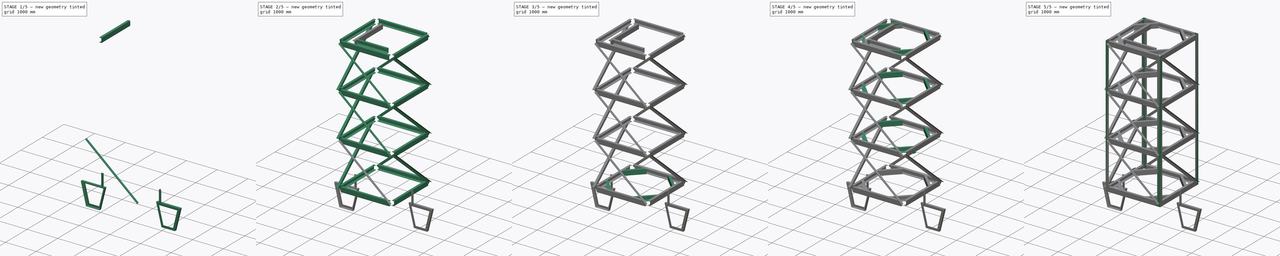
[diagram: build sequence overview — one tinted view per stage of 5, left to right]
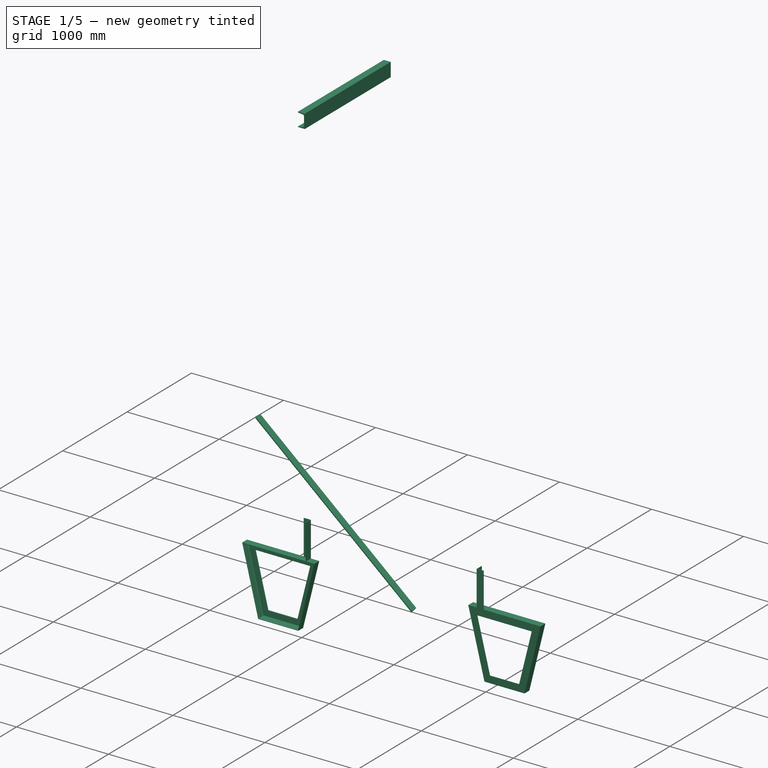
[diagram: stage 1 of 5 — iso view after this stage's code; geometry added in this stage tinted green]
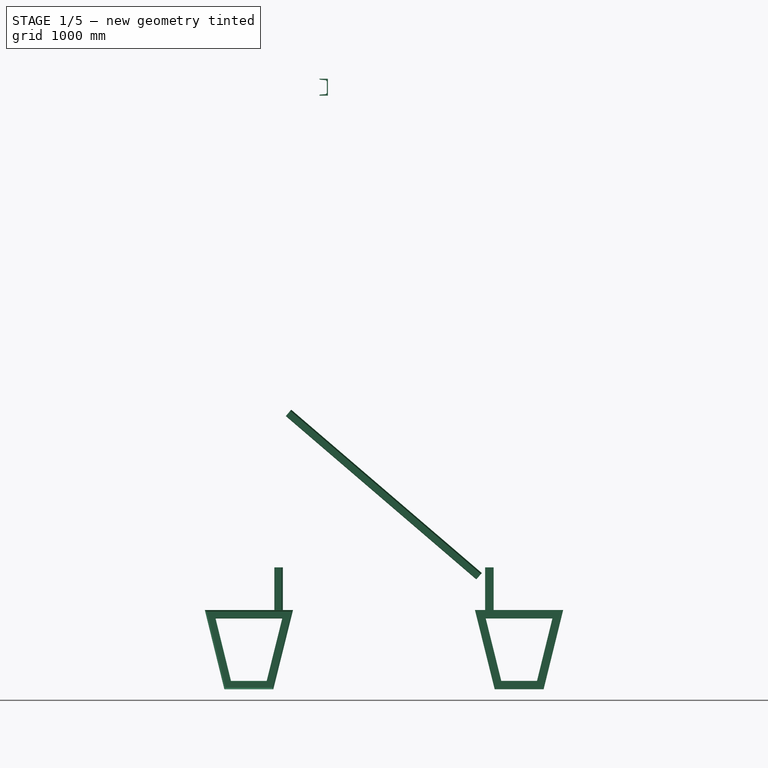
[diagram: stage 1 of 5 — front view after this stage's code; geometry added in this stage tinted green]
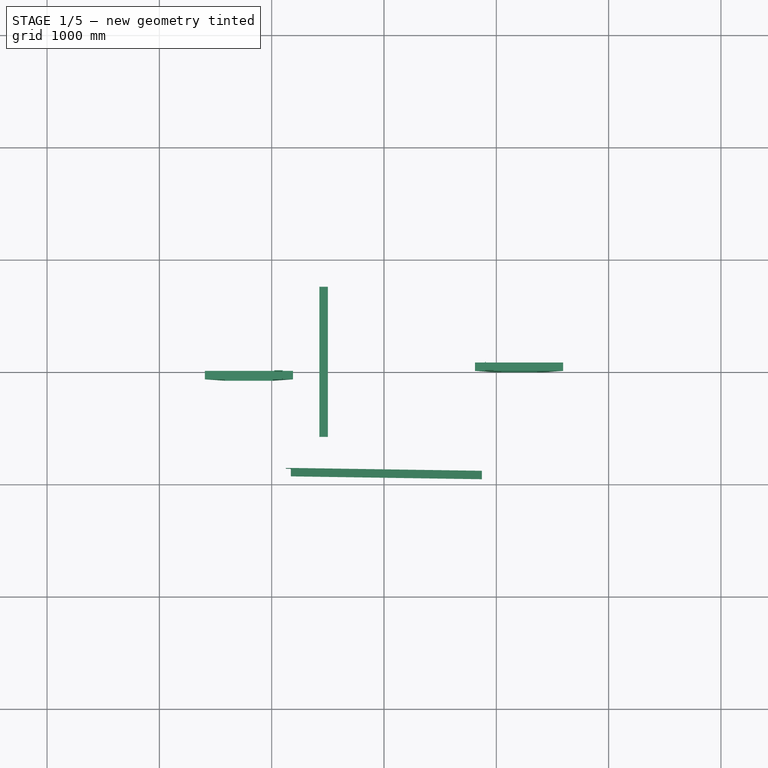
[diagram: stage 1 of 5 — top view after this stage's code; geometry added in this stage tinted green]
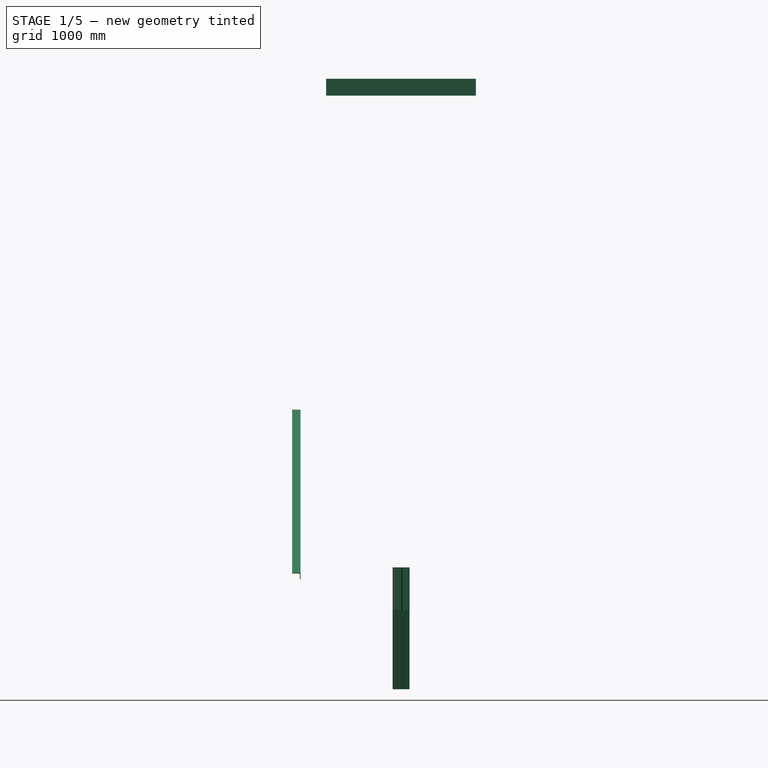
[diagram: stage 1 of 5 — right view after this stage's code; geometry added in this stage tinted green]
FCSTD DOCUMENT  (FreeCAD 1.0R39109 (Git))
Label: centerCage
License: All rights reserved
LicenseURL: https://en.wikipedia.org/wiki/All_rights_reserved
objects: Part::FeaturePython×15, Part::Mirroring×6, Part::Compound×6, Sketcher::SketchObject×5, Part::Extrusion×4, Part::Cut×3, Part::Feature×3, App::Part×2, Spreadsheet::Sheet×1, PartDesign::Pad×1, Part::Sweep×1
note: 45 computed .brp shape members not serialized (recipe doc carries the construction recipe); baked Part::Feature solids carry a one-line shape summary decoded from their .brp

FEATURE [Part::FeaturePython] AngleSteel002  label="LShp001"  # WARN: FeaturePython — macro-defined, semantics opaque (R4)
  A = 75
  B = 75
  L = 2234.39
  Placement = pos=(-850,-932.5,1525) rot=(0,1,0;2.2794rad)
  Solid = true
  g0 = 7.85
  mass = 15.306
  size = 10
  standard = SS_Equal
  t = 6
  expr: .Placement.Base.x = -Spreadsheet.W0 / 2 + Spreadsheet.mb0 / 2
  expr: .Placement.Base.y = -Spreadsheet.W0 / 2 - 32.5
  expr: .Placement.Base.z = Spreadsheet.p0 + Spreadsheet.hg
  expr: .Placement.Rotation.Angle = Spreadsheet.sita + 90
  expr: L = Spreadsheet.ll
FEATURE [Part::FeaturePython] ChannelSteel002  # WARN: FeaturePython — macro-defined, semantics opaque (R4)
  B = 75
  H = 150
  L = 1200
  Placement = pos=(500,0,4350) rot=(0,0,1;0rad)
  Solid = false
  g0 = 7.85
  mass = 0
  size = 4
  standard = SS
  t1 = 9
  t2 = 12.5
  expr: .Placement.Base.z = Spreadsheet.L0 - 150
FEATURE [Part::Extrusion] Extrude008
  Base = -> ChannelSteel002
  Dir = (0,1,0)
  DirMode = 2
  FaceMakerClass = Part::FaceMakerBullseye
  FaceMakerMode = 3
  LengthFwd = 1334
  LengthRev = 0
  Solid = false
  Symmetric = true
FEATURE [Part::Compound] Compound008
FEATURE [Part::Cut] Cut002
  Base = -> Extrude008
  Tool = -> Compound008
FEATURE [Sketcher::SketchObject] Sketch
  ArcFitTolerance = 1e-06
  AttachmentSupport = -> [Part__Feature009]
  FullyConstrained = false
  MakeInternals = false
  MapMode = 5
  Placement = pos=(0,0.033,0) rot=(1,0,0;1.5708rad)
  sketch-geometry (4):
    g0: LineSegment StartX=830.796 StartY=-231.462 StartZ=0 EndX=1616.25 EndY=-231.462 EndZ=0
    g1: LineSegment StartX=1616.25 StartY=-231.462 StartZ=0 EndX=1442.06 EndY=-936.829 EndZ=0
    g2: LineSegment StartX=1442.06 StartY=-936.829 StartZ=0 EndX=1006.47 EndY=-936.829 EndZ=0
    g3: LineSegment StartX=1006.47 StartY=-936.829 StartZ=0 EndX=830.796 EndY=-231.462 EndZ=0
  constraints (6):
    c: Horizontal(g0)
    c: Coincident(g0,g1)
    c: Coincident(g1,g2)
    c: Horizontal(g2)
    c: Coincident(g2,g3)
    c: Coincident(g3,g0)
FEATURE [Part::FeaturePython] AngleSteel003  # WARN: FeaturePython — macro-defined, semantics opaque (R4)
  A = 75
  B = 75
  L = 5500
  Placement = pos=(1262.5,0,-231.5) rot=(0.57735,-0.57735,-0.57735;4.18879rad)
  Solid = false
  g0 = 7.85
  mass = 0
  size = 10
  standard = SS_Equal
  t = 6
  type = 00_Angle
FEATURE [Part::Sweep] Sweep
  Frenet = true
  Placement = pos=(-44,0,1178.5) rot=(0,0,1;0rad)
  Sections = -> [AngleSteel003]
  Solid = true
  Spine = -> Sketch [Edge1,Edge2,Edge3,Edge4]
  Transition = 1
FEATURE [App::Part] Compound017  label="brade"
  Group = -> [Part__Feature008,Part__Feature009,AngleSteel003,Sketch,Sweep]
  Origin = -> Origin005
  Placement = pos=(23,0,-1177.59) rot=(0,0,1;0rad)
FEATURE [Part::FeaturePython] Array014  # Draft array (typed FeaturePython)
  AlwaysSyncPlacement = false
  Angle = 360
  ArrayType = 1
  Axis = (0,0,1)
  Base = -> Compound017
  Center = (0,0,0)
  Count = 2
  ExpandArray = false
  Fuse = true
  IntervalAxis = (0,0,0)
  IntervalX = (50,0,0)
  IntervalY = (0,50,0)
  IntervalZ = (0,0,50)
  NumberCircles = 3
  NumberPolar = 2
  NumberX = 2
  NumberY = 2
  NumberZ = 1
  PlacementList = 2 placements: [(23,0,-1177.59),(-23,2.81669e-15,-1177.59)]
  RadialDistance = 50
  ScaleList = (2) [(1,1,1),(1,1,1)]
  Symmetry = 1
  TangentialDistance = 25
FEATURE [Part::Mirroring] Mirror011  label="Cut002 (mirrored)"
  Base = (0,0,0)
  Normal = (1,0,0)
  Source = -> Cut002
FEATURE [App::Part] Part  label="centerCage"
  Group = -> [Spreadsheet,ChannelSteel,Array001,AngleSteel,Array,AngleSteel001,ChannelSteel001,Compound003,Sketch006,Mirror005,Extrude006,Cut,Sketch007,Pad,Sketch008,Extrude007,Cut001,Mirror006,Compound004,AngleSteel002,Array008,Sketch009,Extrude,Mirror,Compound005,Compound006,Mirror007,Compound008,Extrude008,ChannelSteel002,Cut002,ChannelSteel003,Array010,Array011,Mirror010,Compound017,Part__Feature005,+4 more]
  Origin = -> Origin
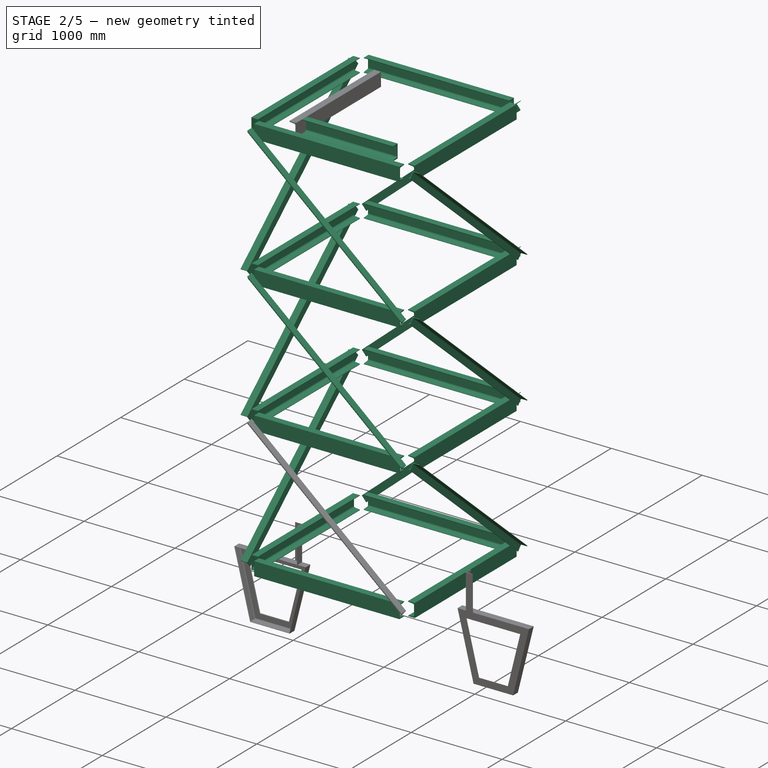
[diagram: stage 2 of 5 — iso view after this stage's code; geometry added in this stage tinted green]
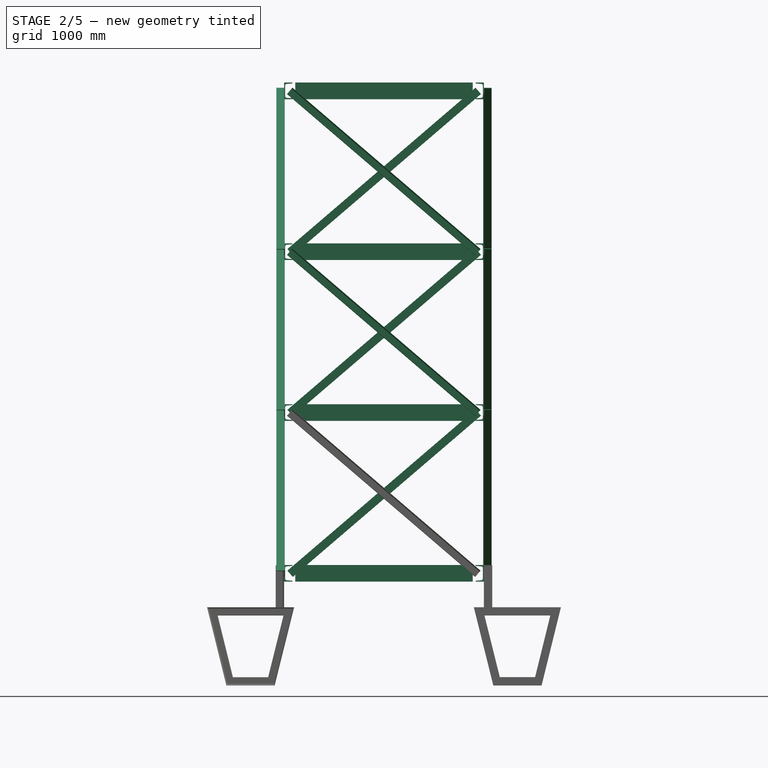
[diagram: stage 2 of 5 — front view after this stage's code; geometry added in this stage tinted green]
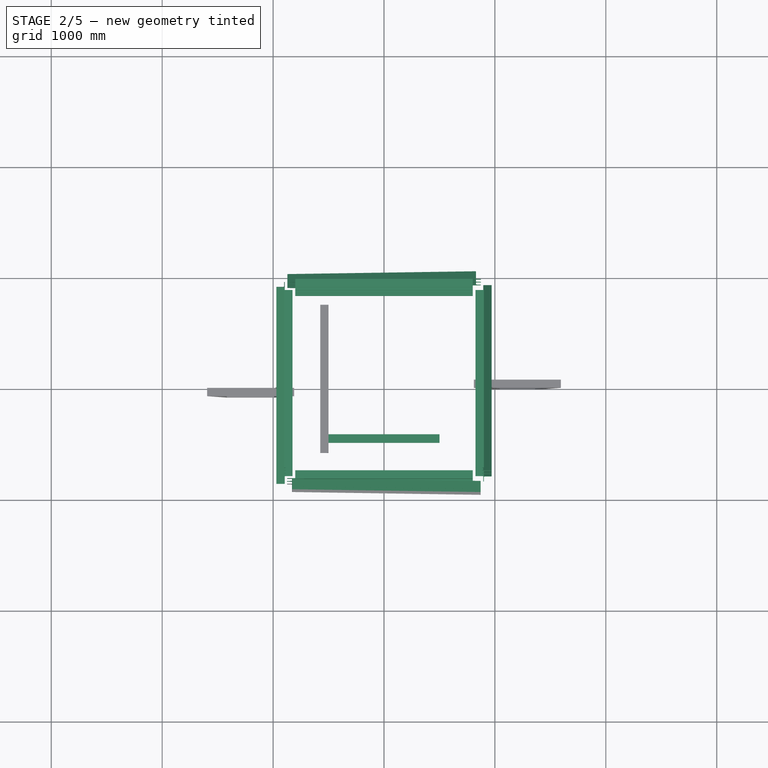
[diagram: stage 2 of 5 — top view after this stage's code; geometry added in this stage tinted green]
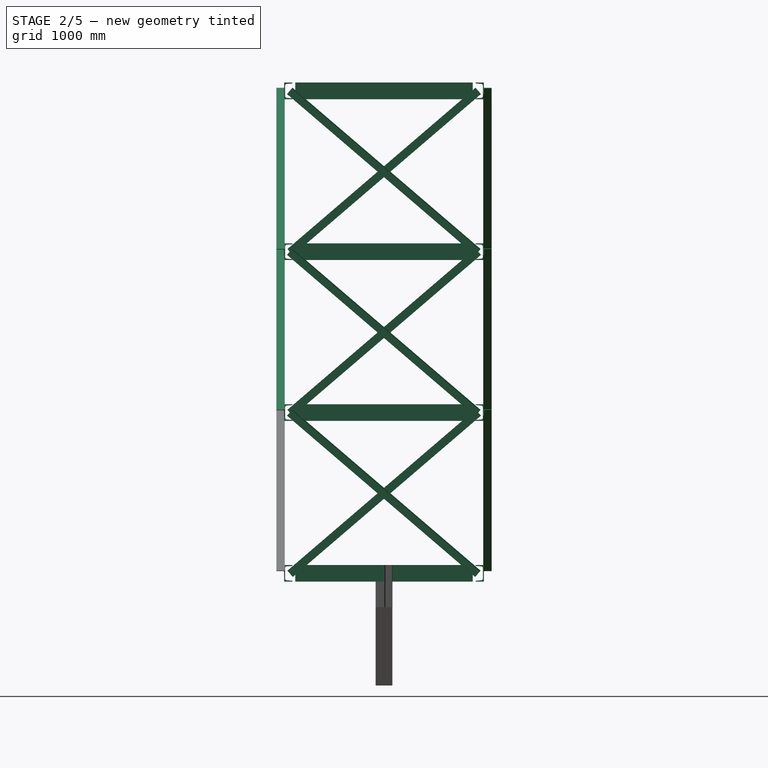
[diagram: stage 2 of 5 — right view after this stage's code; geometry added in this stage tinted green]
FEATURE [Part::FeaturePython] ChannelSteel  label="hShp"  # WARN: FeaturePython — macro-defined, semantics opaque (R4)
  B = 75
  H = 150
  L = 1600
  Placement = pos=(-800,-862.5,75) rot=(0.57735,0.57735,0.57735;2.0944rad)
  Solid = true
  g0 = 7.85
  mass = 35.6065
  size = 4
  standard = SS
  t1 = 6
  t2 = 8
  expr: .Placement.Base.x = -Spreadsheet.W0 / 2 + Spreadsheet.mb0
  expr: .Placement.Base.y = -Spreadsheet.W0 / 2 + Spreadsheet.hb0 / 2
  expr: .Placement.Base.z = Spreadsheet.hg
  expr: L = Spreadsheet.W0 - Spreadsheet.mb0 * 2
FEATURE [Part::FeaturePython] Array001  label="hBeam"  # Draft array (typed FeaturePython)
  AlwaysSyncPlacement = false
  Angle = 360
  ArrayType = 0
  Axis = (0,0,1)
  Base = -> ChannelSteel
  Center = (0,0,0)
  Count = 4
  ExpandArray = false
  Fuse = false
  IntervalAxis = (0,0,0)
  IntervalX = (100,0,0)
  IntervalY = (0,100,0)
  IntervalZ = (0,0,1450)
  NumberCircles = 3
  NumberPolar = 5
  NumberX = 1
  NumberY = 1
  NumberZ = 4
  PlacementList = 4 placements: arithmetic series from (-800,-862.5,75) step (0,0,1450) to (-800,-862.5,4425)
  RadialDistance = 50
  ScaleList = (4) [(1,1,1),(1,1,1),(1,1,1),(1,1,1)]
  Symmetry = 1
  TangentialDistance = 25
  expr: .IntervalZ.z = Spreadsheet.p0
  expr: NumberZ = Spreadsheet.n0 + 1
FEATURE [Part::FeaturePython] Array008  # Draft array (typed FeaturePython)
  AlwaysSyncPlacement = false
  Angle = 360
  ArrayType = 0
  Axis = (0,0,1)
  Base = -> AngleSteel002
  Center = (0,0,0)
  Count = 3
  ExpandArray = false
  Fuse = false
  IntervalAxis = (0,0,0)
  IntervalX = (100,0,0)
  IntervalY = (0,100,0)
  IntervalZ = (0,0,1450)
  NumberCircles = 3
  NumberPolar = 5
  NumberX = 1
  NumberY = 1
  NumberZ = 3
  PlacementList = 3 placements: arithmetic series from (-850,-932.5,1525) step (0,0,1450) to (-850,-932.5,4425)
  RadialDistance = 50
  ScaleList = (3) [(1,1,1),(1,1,1),(1,1,1)]
  Symmetry = 1
  TangentialDistance = 25
  expr: .IntervalZ.z = Spreadsheet.p0
  expr: NumberZ = Spreadsheet.n0
FEATURE [Part::FeaturePython] ChannelSteel003  # WARN: FeaturePython — macro-defined, semantics opaque (R4)
  B = 75
  H = 150
  L = 1000
  Placement = pos=(-500,538,4425) rot=(0.57735,0.57735,0.57735;2.0944rad)
  Solid = true
  g0 = 7.85
  mass = 22.2541
  size = 4
  standard = SS
  t1 = 9
  t2 = 12.5
  expr: .Placement.Base.z = Spreadsheet.L0 - Spreadsheet.hg
FEATURE [Part::Mirroring] Mirror010  label="ChannelSteel003 (mirrored)"
  Base = (-300,0,0)
  Normal = (0,-1,0)
  Source = -> ChannelSteel003
FEATURE [Part::Feature] Part__Feature005  label="reducer"
  Placement = pos=(0,0,4350) rot=(0,0,1;0rad)
  shape: bbox 1029 x 1029 x 150 mm, 111 faces (baked)
  expr: .Placement.Base.z = Spreadsheet.L0 - 150
FEATURE [Part::Feature] Part__Feature008  label="Compound017"
  shape: bbox 785.2 x 75 x 709.2 mm, 36 faces (baked)
FEATURE [Part::Feature] Part__Feature009  label="Compound018"
  shape: bbox 75 x 75 x 380 mm, 11 faces (baked)
FEATURE [Part::Compound] Compound
  Links = -> [Array008,Array001]
FEATURE [Part::FeaturePython] Array013  # Draft array (typed FeaturePython)
  AlwaysSyncPlacement = false
  Angle = 360
  ArrayType = 1
  Axis = (0,0,1)
  Base = -> Compound
  Center = (0,0,0)
  Count = 4
  ExpandArray = false
  Fuse = false
  IntervalAxis = (0,0,0)
  IntervalX = (50,0,0)
  IntervalY = (0,50,0)
  IntervalZ = (0,0,50)
  NumberCircles = 3
  NumberPolar = 4
  NumberX = 2
  NumberY = 2
  NumberZ = 1
  PlacementList = 4 placements: [(0,0,0),(0,0,0),(0,0,0),(0,0,0)]
  RadialDistance = 50
  ScaleList = (4) [(1,1,1),(1,1,1),(1,1,1),(1,1,1)]
  Symmetry = 1
  TangentialDistance = 25
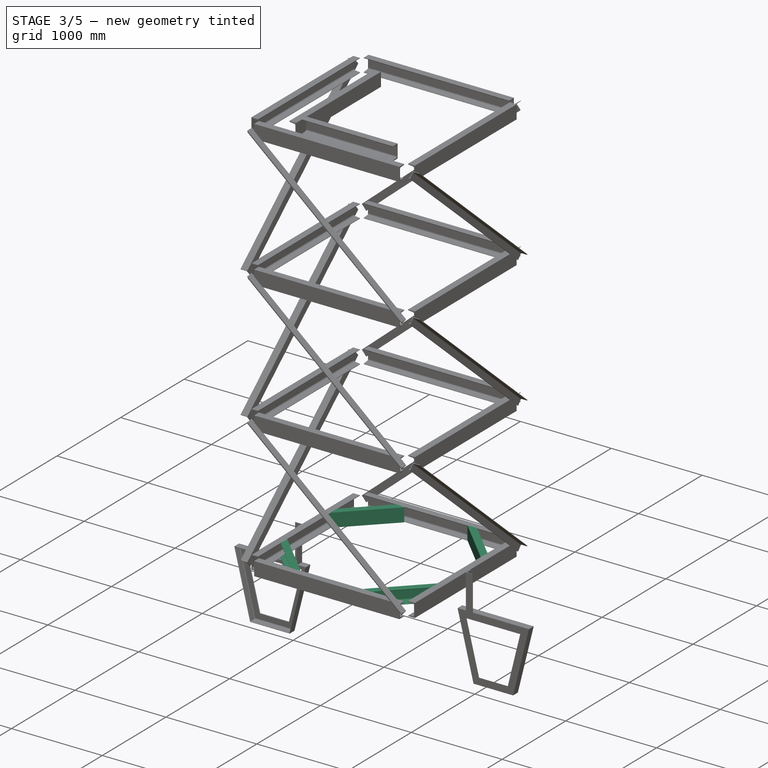
[diagram: stage 3 of 5 — iso view after this stage's code; geometry added in this stage tinted green]
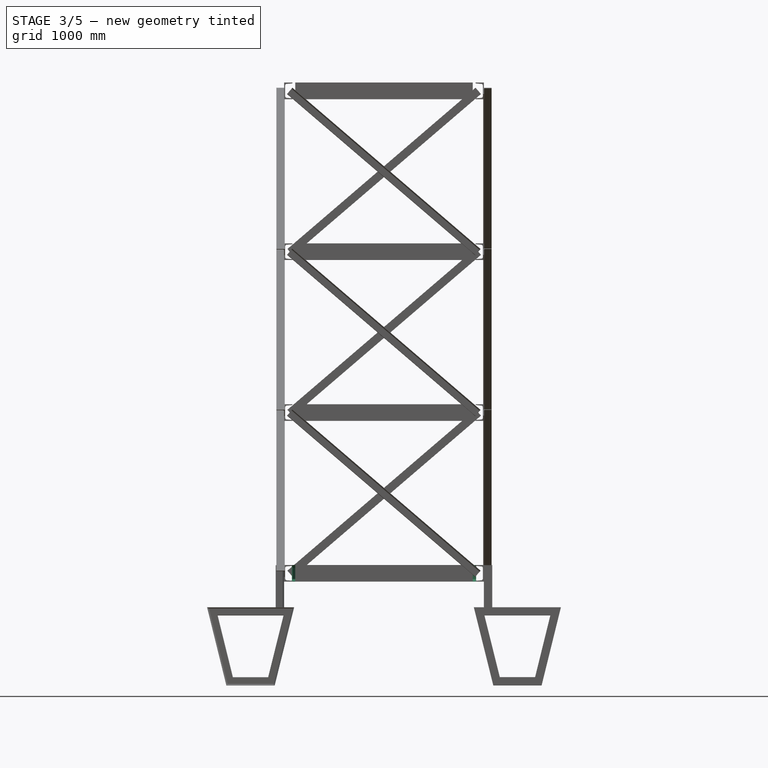
[diagram: stage 3 of 5 — front view after this stage's code; geometry added in this stage tinted green]
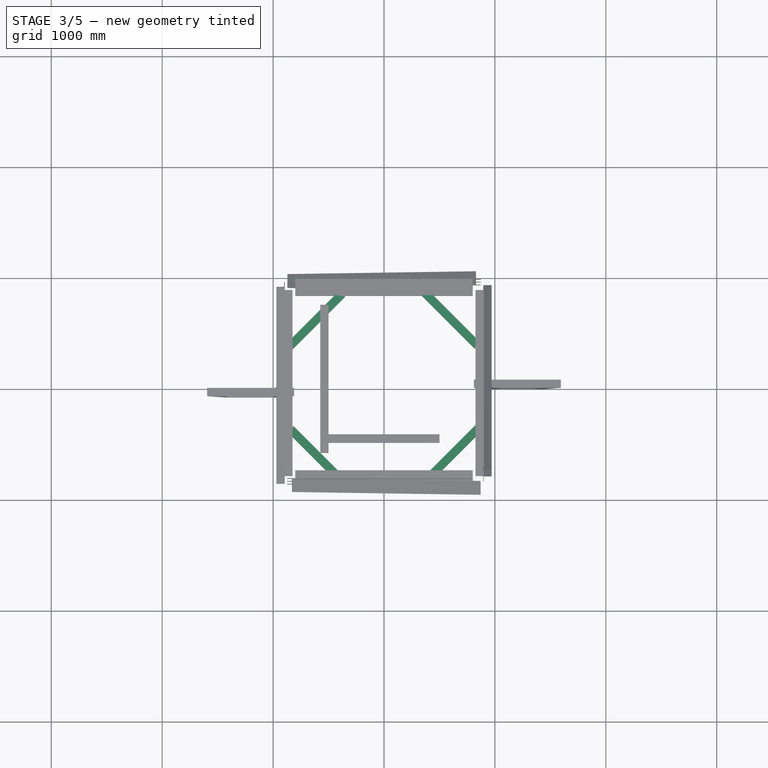
[diagram: stage 3 of 5 — top view after this stage's code; geometry added in this stage tinted green]
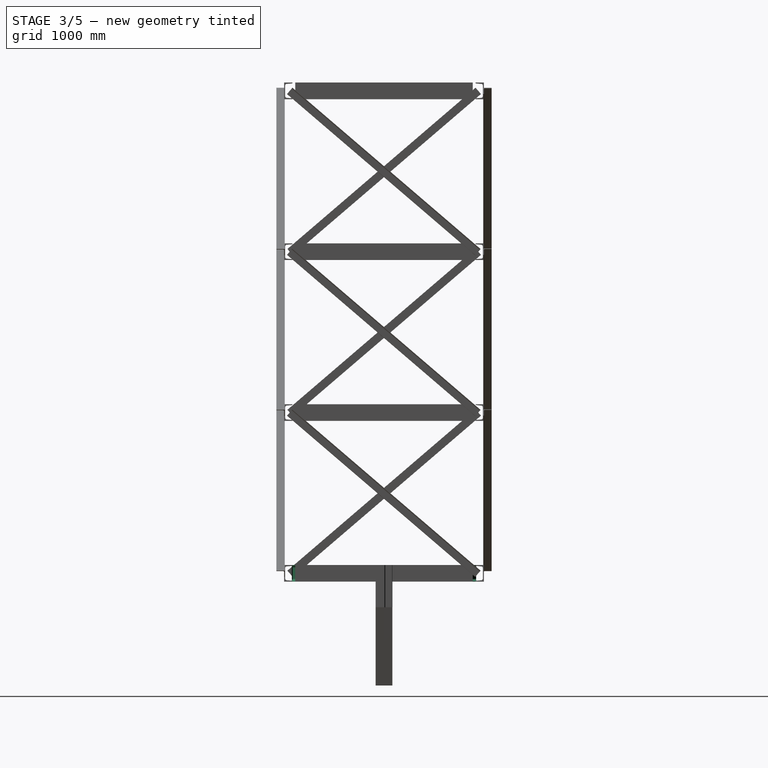
[diagram: stage 3 of 5 — right view after this stage's code; geometry added in this stage tinted green]
FEATURE [Part::FeaturePython] AngleSteel001  label="LShp"  # WARN: FeaturePython — macro-defined, semantics opaque (R4)
  A = 75
  B = 75
  L = 1000
  Placement = pos=(0,0,0) rot=(-1,0,0;1.5708rad)
  Solid = false
  g0 = 7.85
  mass = 0
  size = 10
  standard = SS_Equal
  t = 6
FEATURE [Part::FeaturePython] ChannelSteel001  # WARN: FeaturePython — macro-defined, semantics opaque (R4)
  B = 75
  H = 150
  L = 680
  Placement = pos=(0,0,6e-15) rot=(0.57735,-0.57735,-0.57735;2.0944rad)
  Solid = true
  g0 = 7.85
  mass = 15.1328
  size = 4
  standard = SS
  t1 = 6
  t2 = 8
FEATURE [Sketcher::SketchObject] Sketch006
  ArcFitTolerance = 0
  AttachmentSupport = -> [ChannelSteel001]
  ExternalGeometry = -> [ChannelSteel001]
  FullyConstrained = false
  MakeInternals = false
  MapMode = 5
  Placement = pos=(7.5e-14,0,75) rot=(0,0,1;1.5708rad)
  sketch-geometry (3):
    g0: LineSegment StartX=37.5 StartY=0 StartZ=0 EndX=-38.6181 EndY=76.1181 EndZ=0
    g1: LineSegment StartX=-38.6181 StartY=0 StartZ=0 EndX=37.5 EndY=0 EndZ=0
    g2: LineSegment StartX=-38.6181 StartY=0 StartZ=0 EndX=-38.6181 EndY=76.1181 EndZ=0
  constraints (7):
    c: Coincident(g-3,g0)
    c: Coincident(g1,g0)
    c: Coincident(g2,g1)
    c: Coincident(g2,g0)
    c: Vertical(g2)
    c: Horizontal(g1)
    c: Angle(g0,g1) = 0.785398
FEATURE [Part::Extrusion] Extrude006
  Base = -> Sketch006
  Dir = (1.1e-15,0,1)
  DirMode = 2
  FaceMakerClass = Part::FaceMakerBullseye
  FaceMakerMode = 3
  LengthFwd = 150
  LengthRev = 0
  Reversed = true
  Solid = true
  Symmetric = false
FEATURE [Part::Mirroring] Mirror005  label="Extrude006 (mirrored)"
  Base = (-500,32.5,62.5)
  Normal = (-1,9e-16,0)
  Placement = pos=(299.54,0,0) rot=(0,0,1;0rad)
  Source = -> Extrude006
FEATURE [Part::Compound] Compound003
  Links = -> [Mirror005,Extrude006]
FEATURE [Part::Cut] Cut
  Base = -> ChannelSteel001
  Placement = pos=(-363,-857,75) rot=(0,0,-1;0.785398rad)
  Tool = -> Compound003
  expr: .Placement.Base.x = -Spreadsheet.W0 / 2 + 537
  expr: .Placement.Base.y = -Spreadsheet.W0 / 2 + 43
FEATURE [Part::FeaturePython] Array010  # Draft array (typed FeaturePython)
  AlwaysSyncPlacement = false
  Angle = 360
  ArrayType = 1
  Axis = (0,0,1)
  Base = -> Cut
  Center = (0,0,0)
  Count = 4
  ExpandArray = false
  Fuse = false
  IntervalAxis = (0,0,0)
  IntervalX = (50,0,0)
  IntervalY = (0,50,0)
  IntervalZ = (0,0,50)
  NumberCircles = 3
  NumberPolar = 4
  NumberX = 2
  NumberY = 2
  NumberZ = 1
  PlacementList = 4 placements: [(-363,-857,75),(857,-363,75),(363,857,75),(-857,363,75)]
  RadialDistance = 50
  ScaleList = (4) [(1,1,1),(1,1,1),(1,1,1),(1,1,1)]
  Symmetry = 1
  TangentialDistance = 25
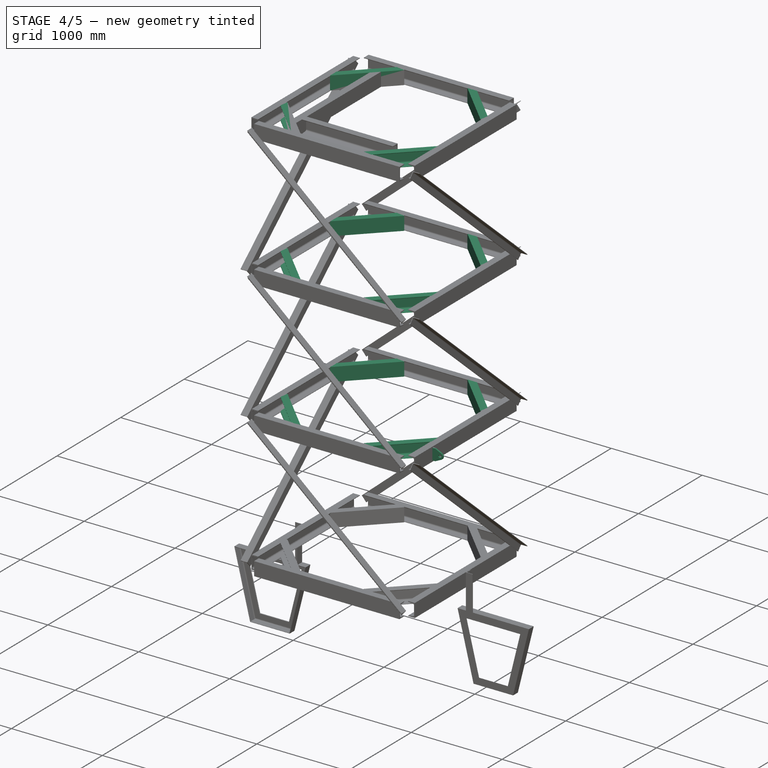
[diagram: stage 4 of 5 — iso view after this stage's code; geometry added in this stage tinted green]
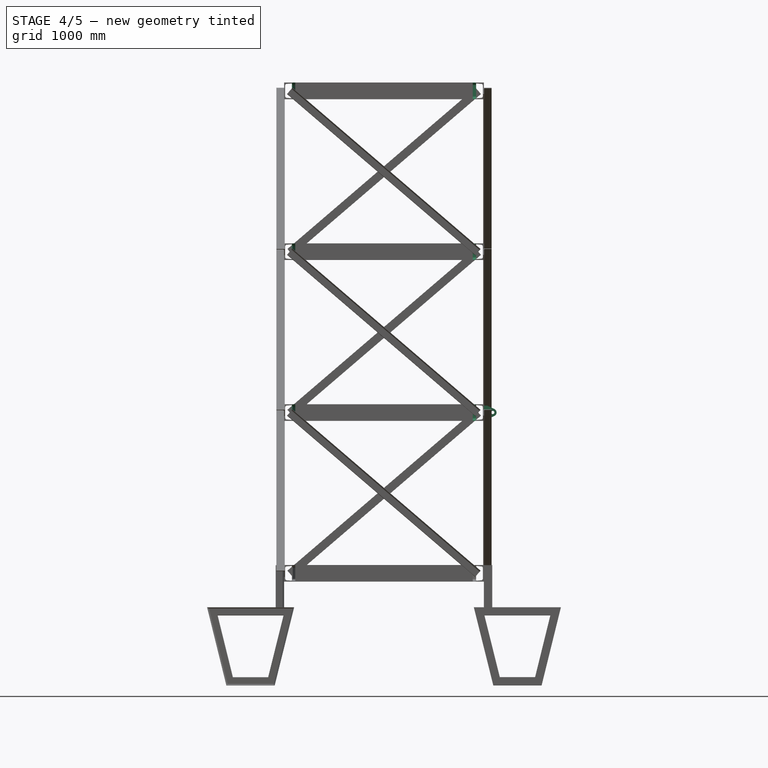
[diagram: stage 4 of 5 — front view after this stage's code; geometry added in this stage tinted green]
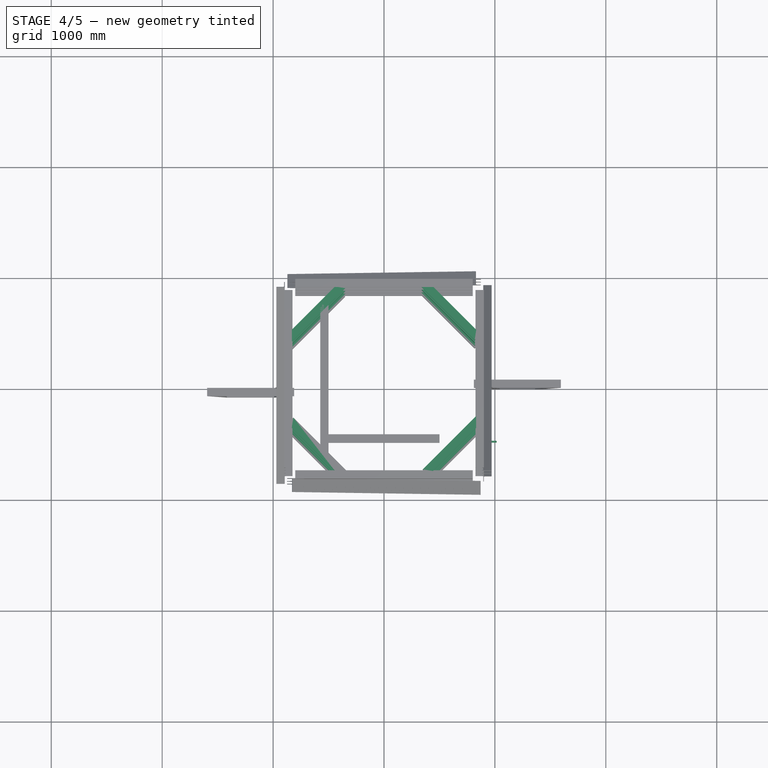
[diagram: stage 4 of 5 — top view after this stage's code; geometry added in this stage tinted green]
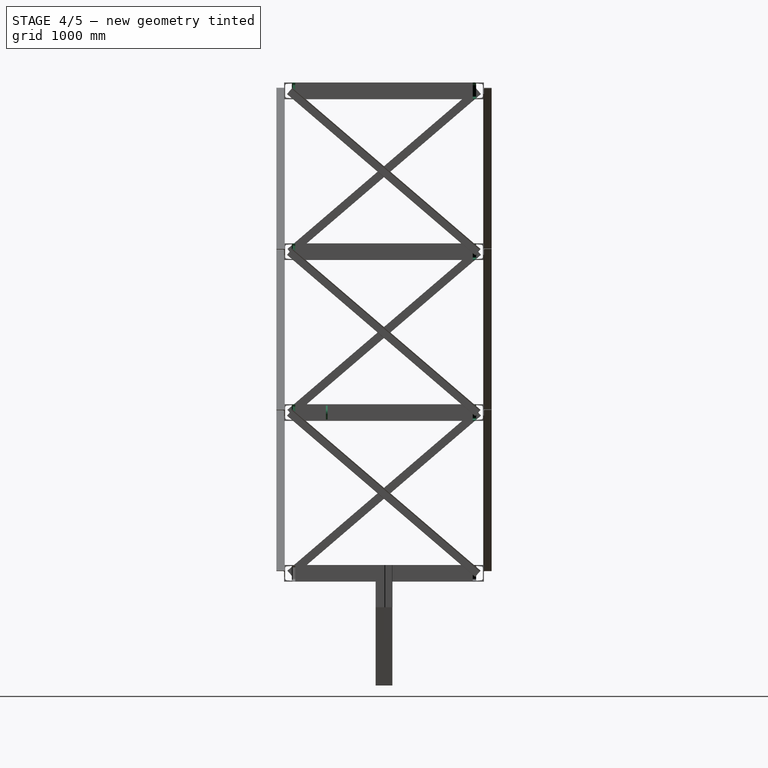
[diagram: stage 4 of 5 — right view after this stage's code; geometry added in this stage tinted green]
FEATURE [Sketcher::SketchObject] Sketch007
  ArcFitTolerance = 0
  FullyConstrained = true
  MakeInternals = false
  MapMode = 5
  Placement = pos=(0,0,0) rot=(1,0,0;1.5708rad)
  expr: Constraints[10] = Spreadsheet.W0 / 2
  expr: Constraints[15] = Spreadsheet.hg
  expr: Constraints[9] = Spreadsheet.hg * 2
  sketch-geometry (7):
    g0: LineSegment StartX=900 StartY=0 StartZ=0 EndX=900 EndY=150 EndZ=0
    g1: LineSegment StartX=900 StartY=150 StartZ=0 EndX=930 EndY=150 EndZ=0
    g2: LineSegment StartX=930 StartY=150 StartZ=0 EndX=999.298 EndY=104.199 EndZ=0
    g3: ArcOfCircle CenterX=980 CenterY=75 CenterZ=0 NormalX=0 NormalY=0 NormalZ=1 AngleXU=0 Radius=35 StartAngle=5.29641 EndAngle=7.26996
    g4: LineSegment StartX=999.298 StartY=45.8011 StartZ=0 EndX=930 EndY=0 EndZ=0
    g5: LineSegment StartX=930 StartY=0 StartZ=0 EndX=900 EndY=0 EndZ=0
    g6: Circle CenterX=980 CenterY=75 CenterZ=0 NormalX=0 NormalY=0 NormalZ=1 AngleXU=0 Radius=15
  constraints (19):
    c: Vertical(g0)
    c: Coincident(g0,g1)
    c: Horizontal(g1)
    c: Coincident(g1,g2)
    c: Tangent(g2,g3) = 1.5708
    c: Coincident(g4,g5)
    c: Coincident(g5,g0)
    c: Horizontal(g5)
    c: Coincident(g6,g3)
    c: DistanceY(g0,g0) = 150
    c: DistanceX(g-1,g0) = 900
    c: PointOnObject(g0,g-1)
    c: Vertical(g4,g1)
    c: DistanceX(g0,g3) = 80
    c: Tangent(g3,g4) = 1.5708
    c: DistanceY(g3,g1) = 75
    c: Radius(g6) = 15
    c: Radius(g3) = 35
    c: DistanceX(g0,g4) = 30
FEATURE [PartDesign::Pad] Pad
  Direction = (0,-1,0)
  Length = 48
  Length2 = 10
  Midplane = true
  Placement = pos=(0,0,0) rot=(1,0,0;1.5708rad)
  Profile = -> Sketch007
  ReferenceAxis = -> Sketch007 [N_Axis]
  Suppressed = false
  Type = 0
FEATURE [Sketcher::SketchObject] Sketch008
  ArcFitTolerance = 0
  ExternalGeometry = -> [Pad]
  FullyConstrained = true
  MakeInternals = false
  MapMode = 5
  Placement = pos=(0,0,8.9e-14) rot=(1,0,0;3.14159rad)
  sketch-geometry (4):
    g0: LineSegment StartX=900 StartY=-8 StartZ=0 EndX=1050 EndY=-8 EndZ=0
    g1: LineSegment StartX=1050 StartY=-8 StartZ=0 EndX=1050 EndY=8 EndZ=0
    g2: LineSegment StartX=1050 StartY=8 StartZ=0 EndX=900 EndY=8 EndZ=0
    g3: LineSegment StartX=900 StartY=8 StartZ=0 EndX=900 EndY=-8 EndZ=0
  constraints (12):
    c: Coincident(g0,g1)
    c: Coincident(g1,g2)
    c: Coincident(g2,g3)
    c: Coincident(g3,g0)
    c: Horizontal(g0)
    c: Horizontal(g2)
    c: Vertical(g1)
    c: Vertical(g3)
    c: Distance(g1) = 16
    c: PointOnObject(g2,g-4)
    c: DistanceY(g2,g-4) = 16
    c: DistanceX(g2,g2) = 150
FEATURE [Part::Extrusion] Extrude007
  Base = -> Sketch008
  Dir = (0,0,-1)
  DirMode = 2
  FaceMakerClass = Part::FaceMakerBullseye
  FaceMakerMode = 3
  LengthFwd = 150
  LengthRev = 0
  Reversed = true
  Solid = true
  Symmetric = false
FEATURE [Part::Cut] Cut001
  Base = -> Pad
  Placement = pos=(0,-516,0) rot=(0,0,1;0rad)
  Tool = -> Extrude007
  expr: .Placement.Base.y = -Spreadsheet.rw / 2 - 16
FEATURE [Part::Mirroring] Mirror006  label="Cut001 (mirrored)"
  Base = (0,0,400)
  Normal = (0,-1,0)
  Source = -> Cut001
FEATURE [Part::Compound] Compound004
  Links = -> [Mirror006,Cut001]
FEATURE [Sketcher::SketchObject] Sketch009
  ArcFitTolerance = 0
  ExternalGeometry = -> [Compound004]
  FullyConstrained = true
  MakeInternals = false
  Placement = pos=(0,0,0) rot=(1,0,0;1.5708rad)
  expr: Constraints[17] = Spreadsheet.p0
  sketch-geometry (7):
    g0: LineSegment StartX=900 StartY=1462.5 StartZ=0 EndX=900 EndY=1587.5 EndZ=0
    g1: LineSegment StartX=900 StartY=1587.5 StartZ=0 EndX=930 EndY=1587.5 EndZ=0
    g2: LineSegment StartX=930 StartY=1587.5 StartZ=0 EndX=995.018 EndY=1556.61 EndZ=0
    g3: ArcOfCircle CenterX=980 CenterY=1525 CenterZ=0 NormalX=0 NormalY=0 NormalZ=1 AngleXU=0 Radius=35 StartAngle=5.15587 EndAngle=7.41051
    g4: LineSegment StartX=995.018 StartY=1493.39 StartZ=0 EndX=930 EndY=1462.5 EndZ=0
    g5: LineSegment StartX=930 StartY=1462.5 StartZ=0 EndX=900 EndY=1462.5 EndZ=0
    g6: Circle CenterX=980 CenterY=1525 CenterZ=0 NormalX=0 NormalY=0 NormalZ=1 AngleXU=0 Radius=15
  constraints (19):
    c: Vertical(g0)
    c: Coincident(g0,g1)
    c: Horizontal(g1)
    c: Coincident(g1,g2)
    c: Tangent(g2,g3) = 1.5708
    c: Coincident(g4,g5)
    c: Coincident(g5,g0)
    c: Horizontal(g5)
    c: Coincident(g6,g3)
    c: Radius(g6) = 15
    c: Radius(g3) = 35
    c: DistanceX(g1,g1) = 30
    c: Distance(g3,g0) = 80
    c: Tangent(g3,g4) = 1.5708
    c: Equal(g5,g1)
    c: Equal(g4,g2)
    c: Distance(g0) = 125
    c: DistanceY(g-3,g3) = 1450
    c: Vertical(g-3,g3)
FEATURE [Part::Extrusion] Extrude
  Base = -> Sketch009
  Dir = (0,-1,2e-16)
  DirMode = 2
  FaceMakerClass = Part::FaceMakerBullseye
  FaceMakerMode = 3
  LengthFwd = 16
  LengthRev = 0
  Placement = pos=(0,-516,0) rot=(0,0,1;0rad)
  Solid = true
  Symmetric = true
  expr: .Placement.Base.y = -Spreadsheet.rw / 2 - 16
FEATURE [Part::FeaturePython] Array011  # Draft array (typed FeaturePython)
  AlwaysSyncPlacement = false
  Angle = 360
  ArrayType = 0
  Axis = (0,0,1)
  Base = -> Array010
  Center = (0,0,0)
  Count = 4
  ExpandArray = false
  Fuse = false
  IntervalAxis = (0,0,0)
  IntervalX = (100,0,0)
  IntervalY = (0,100,0)
  IntervalZ = (0,0,1450)
  NumberCircles = 3
  NumberPolar = 5
  NumberX = 1
  NumberY = 1
  NumberZ = 4
  PlacementList = 4 placements: arithmetic series from (0,0,0) step (0,0,1450) to (0,0,4350)
  RadialDistance = 50
  ScaleList = (4) [(1,1,1),(1,1,1),(1,1,1),(1,1,1)]
  Symmetry = 1
  TangentialDistance = 25
  expr: .IntervalZ.z = Spreadsheet.p0
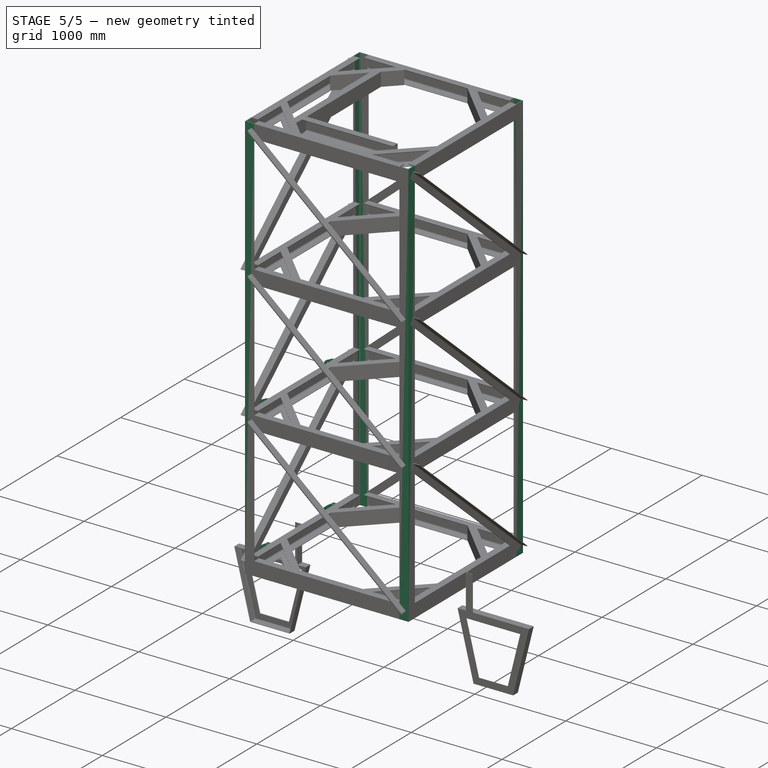
[diagram: stage 5 of 5 — iso view after this stage's code; geometry added in this stage tinted green]
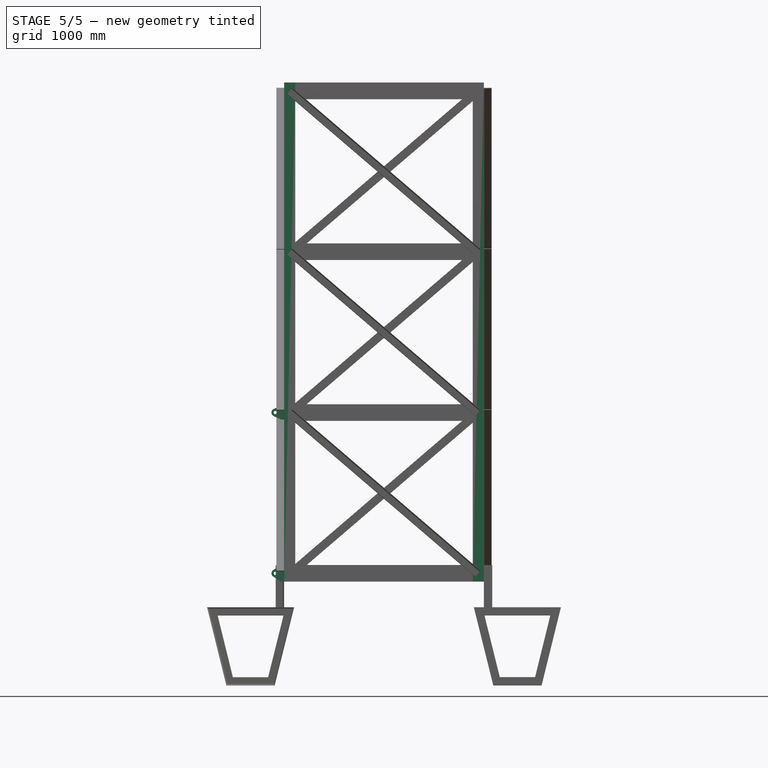
[diagram: stage 5 of 5 — front view after this stage's code; geometry added in this stage tinted green]
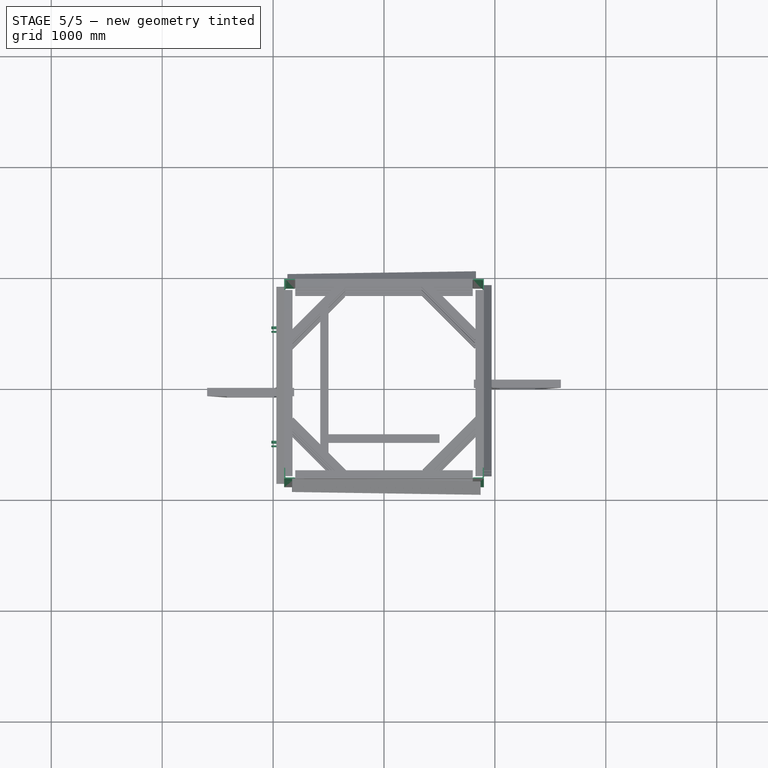
[diagram: stage 5 of 5 — top view after this stage's code; geometry added in this stage tinted green]
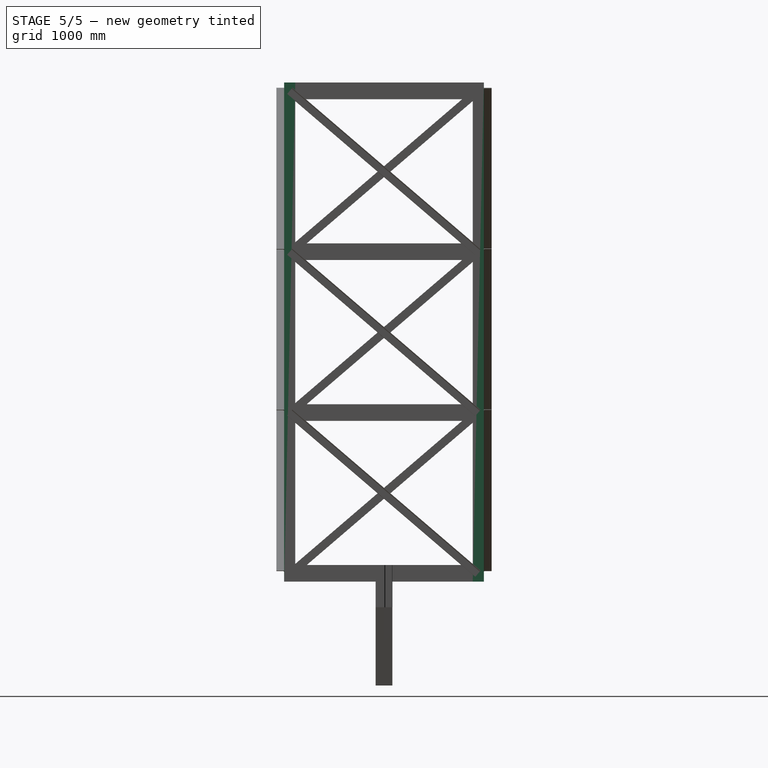
[diagram: stage 5 of 5 — right view after this stage's code; geometry added in this stage tinted green]
FEATURE [Spreadsheet::Sheet] Spreadsheet  label="Spreadsheet_centerCage"
  cells = A2='cage width W0; B2(W0)=1800; A3='cageLength L0; B3(L0)=4500; A4='mainShape mShp; B4(mShp)='100x100x10; A5='mShp gage mg0; B5(mg0)=55; A6='mShp width mb0; B6(mb0)=100; A7='horizontalBeam hShp; B7(hShp)='150x75x9; A8='hShp gage hg; B8(hg)=75; A9='hb0; B9(hb0)=75; A10='lutticeBeam LShp; B10(LShp)='75x75x6; A11='luttice_widht Lb0; B11(Lb0)=75; A12='lutitice length ll; B12(ll)=2234.39029715043; A13='luttice angle sita; B13(sita)=40.6; A14='gusset Gta; B14(Gta)=300; A15='gussetThickness gt; B15(gt)=6; A16='lx; B16(lx)=-760.518050346879; A17='lz; B17(lz)=201.097312797114; A18='Divishon no; B18(n0)=3; A19='DivishonPitch p0; B19(p0)=1450; A20='rakeWidth  rw; B20(rw)=1000; A22='Angle; D22='Channel; A23='40x40x5; B23=40; C23=17; D23='75x40x5; E23=75; F23=40; G23=17; A24='50x50x5; B24=50; C24=30; D24='100x50x5; E24=100; F24=50; G24=30; A25='65x65x6; B25=65; C25=35; D25='125x65x6; E25=125; F25=65; G25=35; A26='75x75x6; B26=75; C26=40; D26='150x75x9; E26=150; F26=75; G26=40; A27='90x90x7; B27=90; C27=50; D27='180x75x7; E27=180; F27=75; G27=40; A28='100x100x10; B28=100; C28=55; F28=75; G28=40; A29='130x130x12; B29=130
FEATURE [Part::FeaturePython] AngleSteel  label="mShp"  # WARN: FeaturePython — macro-defined, semantics opaque (R4)
  A = 100
  B = 100
  L = 4500
  Placement = pos=(-850,-850,0) rot=(0,0,1;1.5708rad)
  Solid = true
  g0 = 7.85
  mass = 67.1327
  size = 17
  standard = SS_Equal
  t = 7
  expr: .Placement.Base.x = -Spreadsheet.W0 / 2 + Spreadsheet.mb0 / 2
  expr: .Placement.Base.y = -Spreadsheet.W0 / 2 + Spreadsheet.mb0 / 2
  expr: L = Spreadsheet.L0
FEATURE [Part::FeaturePython] Array  # Draft array (typed FeaturePython)
  AlwaysSyncPlacement = false
  Angle = 360
  ArrayType = 1
  Axis = (0,0,1)
  Base = -> AngleSteel
  Center = (0,0,0)
  Count = 4
  ExpandArray = false
  Fuse = false
  IntervalAxis = (0,0,0)
  IntervalX = (50,0,0)
  IntervalY = (0,50,0)
  IntervalZ = (0,0,50)
  NumberCircles = 3
  NumberPolar = 4
  NumberX = 2
  NumberY = 2
  NumberZ = 1
  PlacementList = 4 placements: [(-850,-850,0),(850,-850,0),(850,850,0),(-850,850,0)]
  RadialDistance = 50
  ScaleList = (4) [(1,1,1),(1,1,1),(1,1,1),(1,1,1)]
  Symmetry = 1
  TangentialDistance = 25
FEATURE [Part::Mirroring] Mirror  label="Extrude (mirrored)"
  Base = (0,0,1500)
  Normal = (0,1,0)
  Source = -> Extrude
FEATURE [Part::Compound] Compound005
  Links = -> [Mirror,Extrude]
FEATURE [Part::Compound] Compound006
  Links = -> [Compound005,Compound004]
FEATURE [Part::Mirroring] Mirror007  label="Compound006 (mirrored)"
  Base = (0,0,-1000)
  Normal = (1,0,0)
  Source = -> Compound006
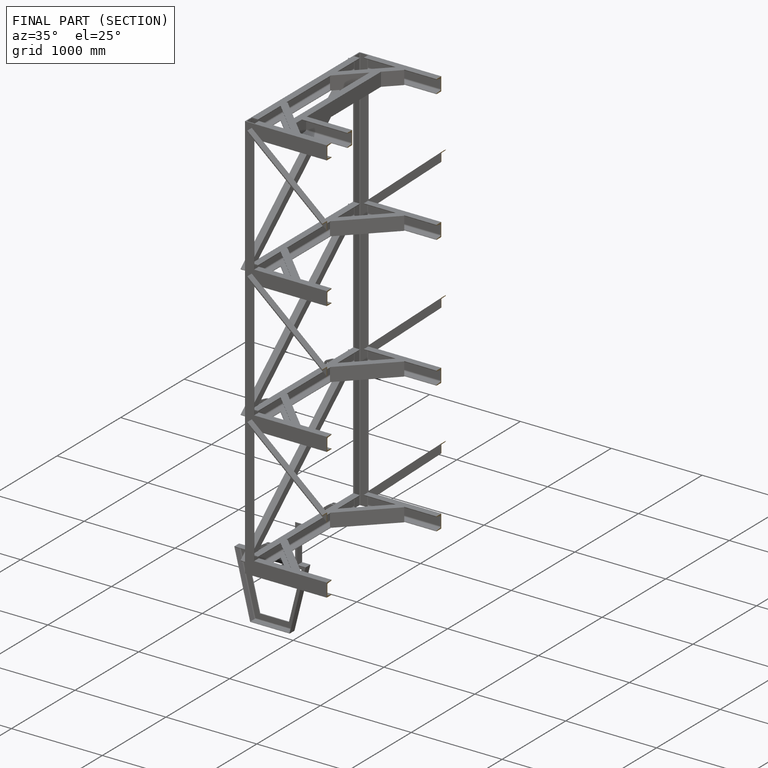
[diagram: finished part — half-section view (interior)]
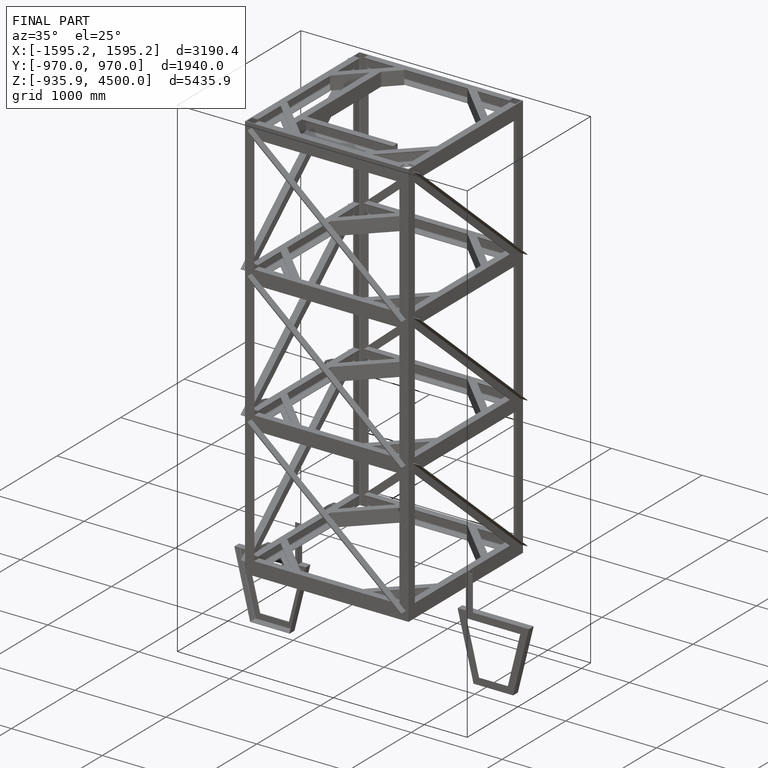
[diagram: finished part — iso view with bounding-box wireframe]
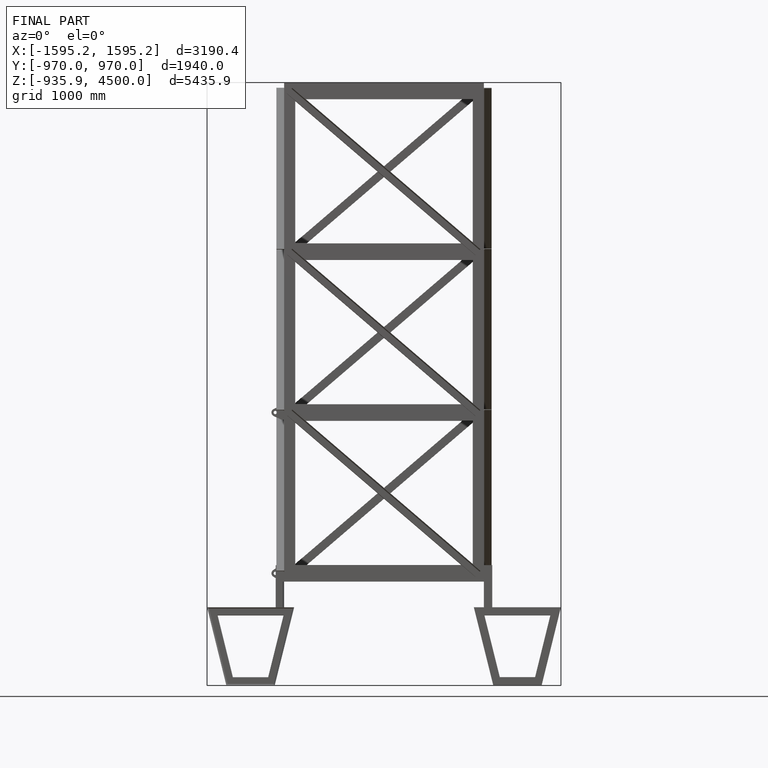
[diagram: finished part — front view with bounding-box wireframe]
